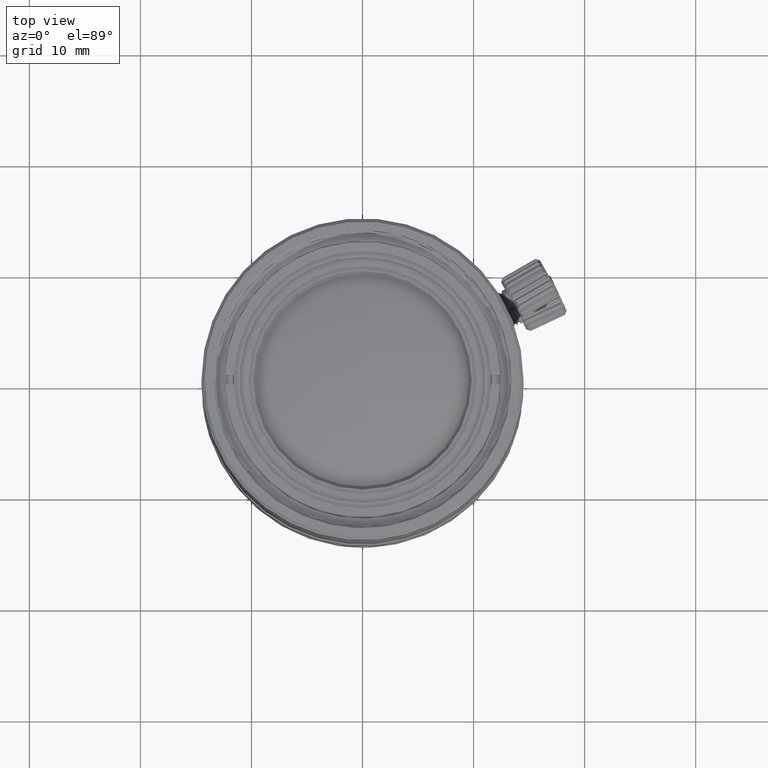
[diagram: clean part render]
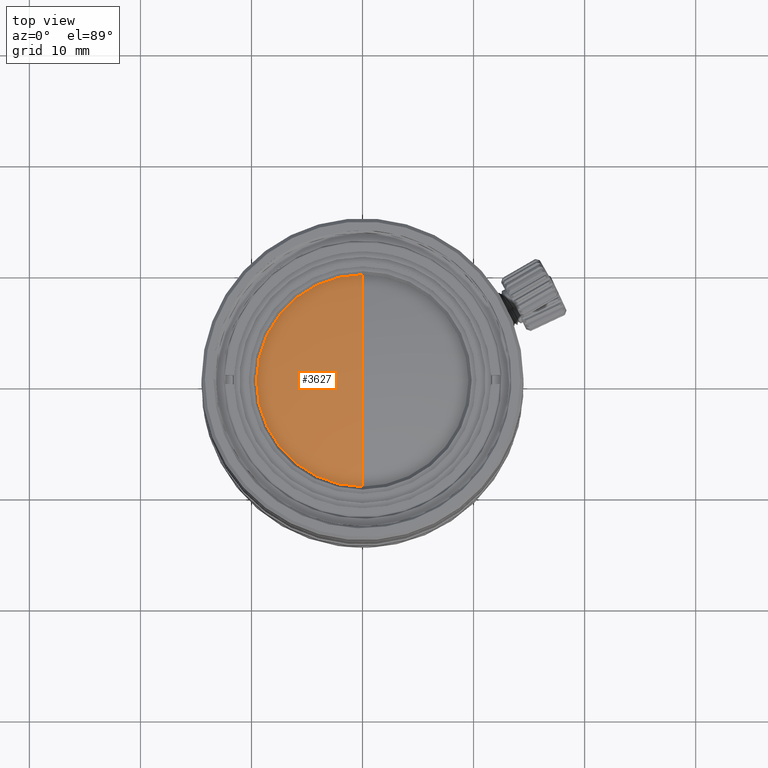
[diagram: same view with one face highlighted and labeled with its STEP entity id]
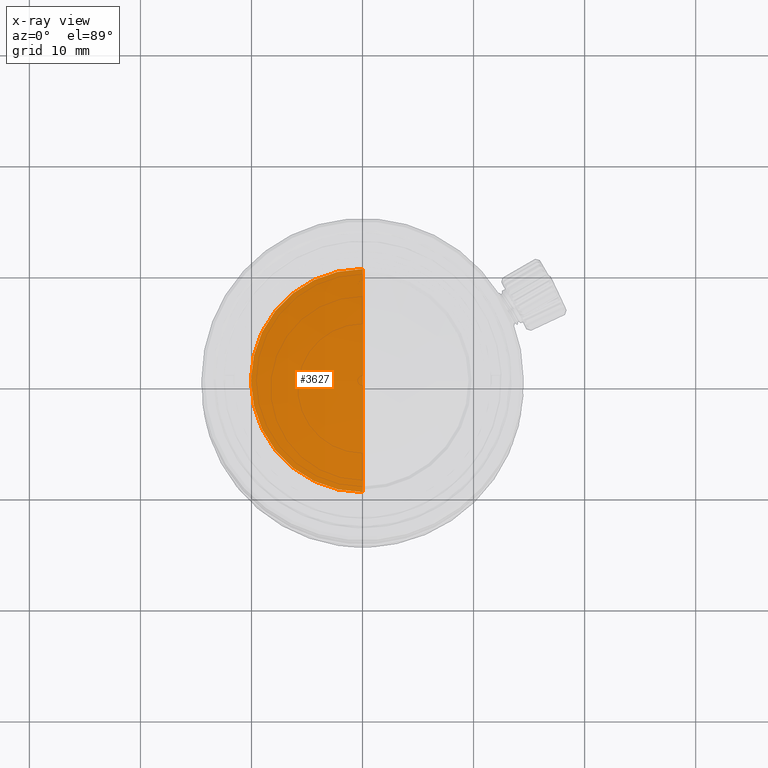
[diagram: x-ray of the same camera — body ghosted, the highlighted face saturated]
A machine part, top view. The second image highlights one B-rep face of the part: STEP entity #3627.
The next image is the same camera in x-ray: the body ghosted, the highlighted face saturated — about 0% of this face is hidden behind the body in this view.
In plain terms, the highlighted spherical surface has radius 40.4888 mm.
Its self-contained STEP definition (entity closure, byte-faithful):
#1997 = DIRECTION ( 'NONE',  ( 0.000000000000000000, 0.000000000000000000, 1.000000000000000000 ) ) ;
#3627 = ADVANCED_FACE ( 'NONE', ( #13354 ), #36248, .T. ) ;
#4533 = CARTESIAN_POINT ( 'NONE',  ( -1.628914017907827858E-14, 10.04964158774002492, 35.75451642323390189 ) ) ;
#7920 = DIRECTION ( 'NONE',  ( -5.894307264498000272E-11, -1.000000000000000000, 0.000000000000000000 ) ) ;
#9935 = VERTEX_POINT ( 'NONE', #4533 ) ;
#11650 = AXIS2_PLACEMENT_3D ( 'NONE', #51014, #17172, #26566 ) ;
#13354 = FACE_OUTER_BOUND ( 'NONE', #44190, .T. ) ;
#15887 = CIRCLE ( 'NONE', #31893, 40.48879999999999768 ) ;
#17092 = AXIS2_PLACEMENT_3D ( 'NONE', #26831, #22755, #41259 ) ;
#17172 = DIRECTION ( 'NONE',  ( 1.000000000000000000, 0.000000000000000000, 0.000000000000000000 ) ) ;
#18331 = CARTESIAN_POINT ( 'NONE',  ( -5.923718033694123273E-10, -10.04964158773997340, 35.75451642323390189 ) ) ;
#20436 = CIRCLE ( 'NONE', #40480, 10.04964158773999827 ) ;
#20656 = CIRCLE ( 'NONE', #11650, 40.48879999999999768 ) ;
#21725 = CARTESIAN_POINT ( 'NONE',  ( -1.504920724136999930E-14, 2.610027584877999795E-14, 35.75451642323390189 ) ) ;
#22755 = DIRECTION ( 'NONE',  ( -1.000000000000000000, 0.000000000000000000, -0.000000000000000000 ) ) ;
#23669 = CARTESIAN_POINT ( 'NONE',  ( -1.504920724136999930E-14, 2.362105188271413074E-14, 37.02154148381998766 ) ) ;
#26566 = DIRECTION ( 'NONE',  ( 0.000000000000000000, 0.000000000000000000, -1.000000000000000000 ) ) ;
#26831 = CARTESIAN_POINT ( 'NONE',  ( -1.504920724136999930E-14, 2.610027584877999795E-14, -3.467258516180010020 ) ) ;
#28938 = ORIENTED_EDGE ( 'NONE', *, *, #42109, .T. ) ;
#31893 = AXIS2_PLACEMENT_3D ( 'NONE', #47431, #33959, #43371 ) ;
#32079 = VERTEX_POINT ( 'NONE', #23669 ) ;
#33959 = DIRECTION ( 'NONE',  ( -1.000000000000000000, -1.224646799147353207E-16, -0.000000000000000000 ) ) ;
#36248 = SPHERICAL_SURFACE ( 'NONE', #17092, 40.48879999999999768 ) ;
#40480 = AXIS2_PLACEMENT_3D ( 'NONE', #21725, #1997, #7920 ) ;
#41259 = DIRECTION ( 'NONE',  ( 0.000000000000000000, -1.000000000000000000, -6.426679017321359653E-17 ) ) ;
#42109 = EDGE_CURVE ( 'NONE', #32079, #9935, #15887, .T. ) ;
#43371 = DIRECTION ( 'NONE',  ( 1.224646799147353207E-16, -1.000000000000000000, 0.000000000000000000 ) ) ;
#44190 = EDGE_LOOP ( 'NONE', ( #60407, #28938, #44314 ) ) ;
#44314 = ORIENTED_EDGE ( 'NONE', *, *, #49796, .T. ) ;
#47431 = CARTESIAN_POINT ( 'NONE',  ( -1.504920724136999930E-14, 2.610027584877999795E-14, -3.467258516180010020 ) ) ;
#49605 = VERTEX_POINT ( 'NONE', #18331 ) ;
#49796 = EDGE_CURVE ( 'NONE', #9935, #49605, #20436, .T. ) ;
#51014 = CARTESIAN_POINT ( 'NONE',  ( -1.504920724136999930E-14, 2.610027584877999795E-14, -3.467258516180010020 ) ) ;
#58015 = EDGE_CURVE ( 'NONE', #32079, #49605, #20656, .T. ) ;
#60407 = ORIENTED_EDGE ( 'NONE', *, *, #58015, .F. ) ;